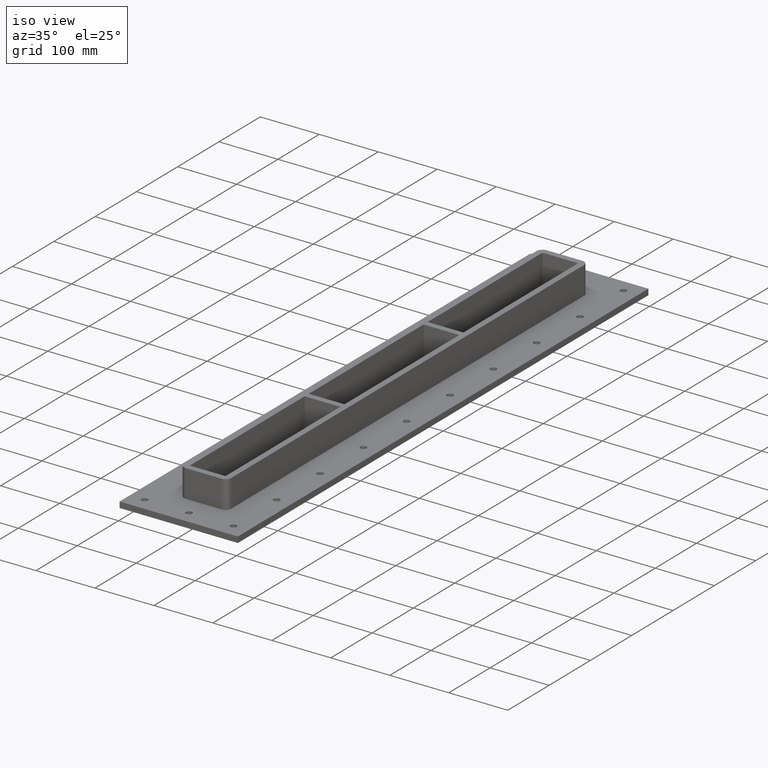
[diagram: clean part render]
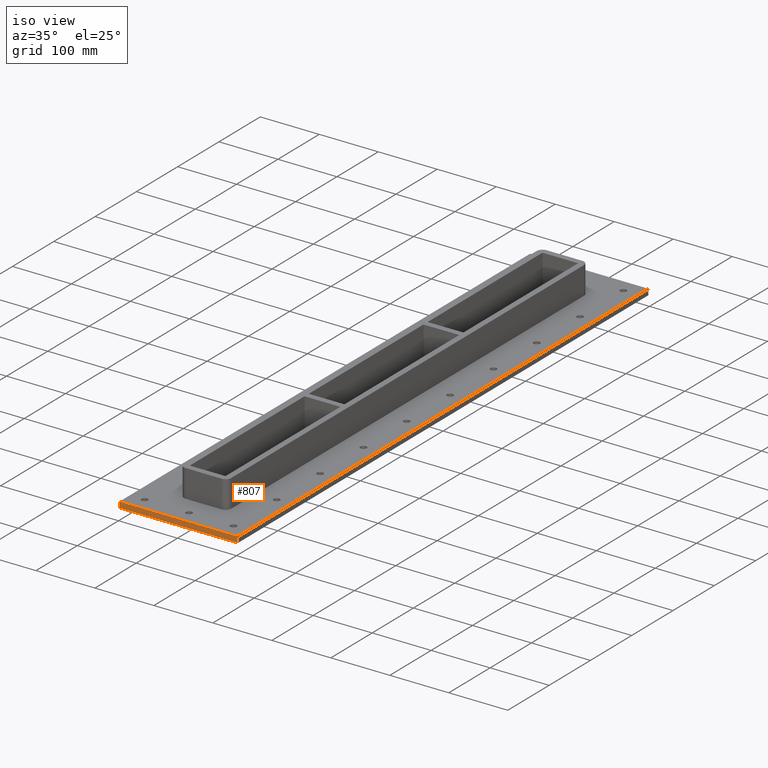
[diagram: same view with one face highlighted and labeled with its STEP entity id]
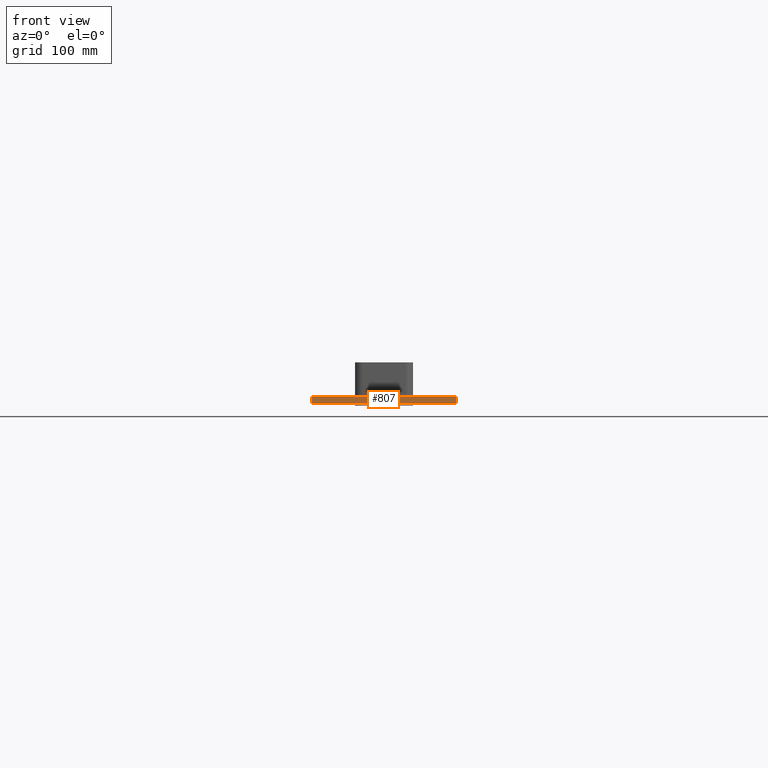
[diagram: same view with one face highlighted and labeled with its STEP entity id]
A machine part, iso view. The second image highlights one B-rep face of the part: STEP entity #807.
A second angle (front view) of the same face is appended — the face is thin or edge-on in the first view.
In plain terms, the highlighted planar face has unit normal (0, -1, 0).
Its self-contained STEP definition (entity closure, byte-faithful):
#689=CARTESIAN_POINT('',(-100.24999999999993,-497.0,-27.0));
#690=VERTEX_POINT('',#689);
#699=CARTESIAN_POINT('',(-100.24999999999993,-497.0,-17.0));
#700=VERTEX_POINT('',#699);
#701=CARTESIAN_POINT('',(-100.24999999999993,-497.0,-27.0));
#702=DIRECTION('',(0.0,0.0,1.0));
#703=VECTOR('',#702,10.0);
#704=LINE('',#701,#703);
#705=EDGE_CURVE('',#690,#700,#704,.T.);
#760=CARTESIAN_POINT('',(100.25000000000007,-497.0,-27.0));
#761=VERTEX_POINT('',#760);
#769=CARTESIAN_POINT('',(100.25000000000007,-497.0,-17.0));
#770=VERTEX_POINT('',#769);
#777=CARTESIAN_POINT('',(100.25000000000007,-497.0,-27.0));
#778=DIRECTION('',(0.0,0.0,1.0));
#779=VECTOR('',#778,10.0);
#780=LINE('',#777,#779);
#781=EDGE_CURVE('',#761,#770,#780,.T.);
#786=CARTESIAN_POINT('',(-100.24999999999993,-497.0,-27.0));
#787=DIRECTION('',(0.0,-1.0,0.0));
#788=DIRECTION('',(1.0,0.0,0.0));
#789=AXIS2_PLACEMENT_3D('',#786,#787,#788);
#790=PLANE('',#789);
#791=CARTESIAN_POINT('',(100.25000000000007,-497.0,-27.0));
#792=DIRECTION('',(-1.0,0.0,0.0));
#793=VECTOR('',#792,200.5);
#794=LINE('',#791,#793);
#795=EDGE_CURVE('',#761,#690,#794,.T.);
#796=ORIENTED_EDGE('',*,*,#795,.F.);
#797=ORIENTED_EDGE('',*,*,#781,.T.);
#798=CARTESIAN_POINT('',(-100.24999999999993,-497.0,-17.0));
#799=DIRECTION('',(1.0,0.0,0.0));
#800=VECTOR('',#799,200.5);
#801=LINE('',#798,#800);
#802=EDGE_CURVE('',#700,#770,#801,.T.);
#803=ORIENTED_EDGE('',*,*,#802,.F.);
#804=ORIENTED_EDGE('',*,*,#705,.F.);
#805=EDGE_LOOP('',(#796,#797,#803,#804));
#806=FACE_OUTER_BOUND('',#805,.T.);
#807=ADVANCED_FACE('',(#806),#790,.T.);